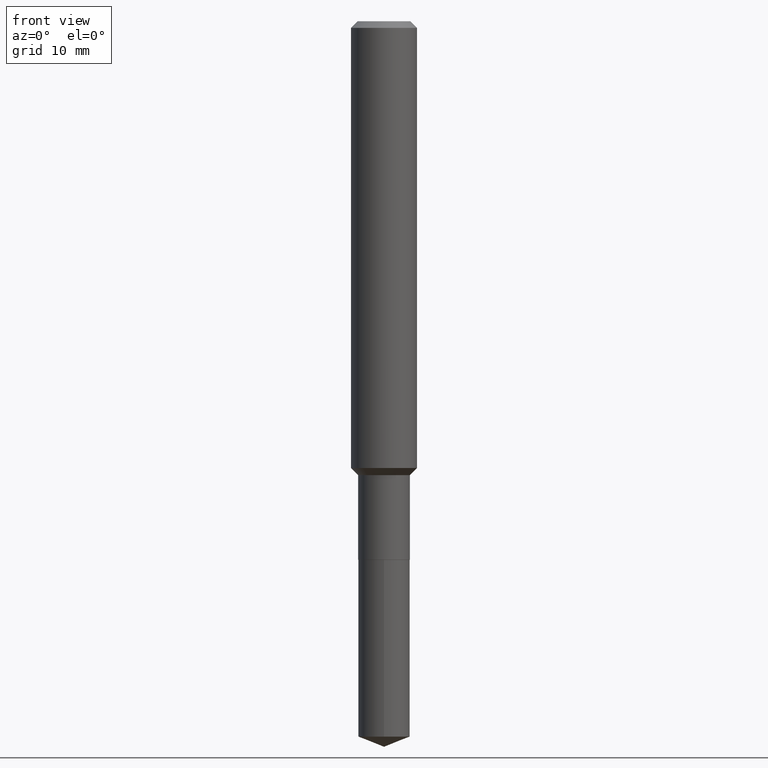
[diagram: clean part render]
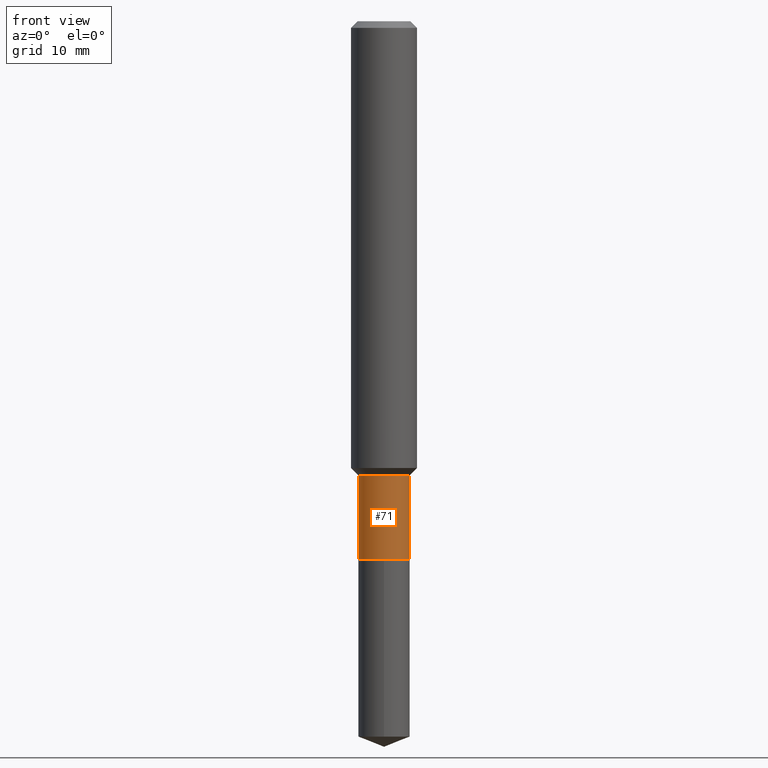
[diagram: same view with one face highlighted and labeled with its STEP entity id]
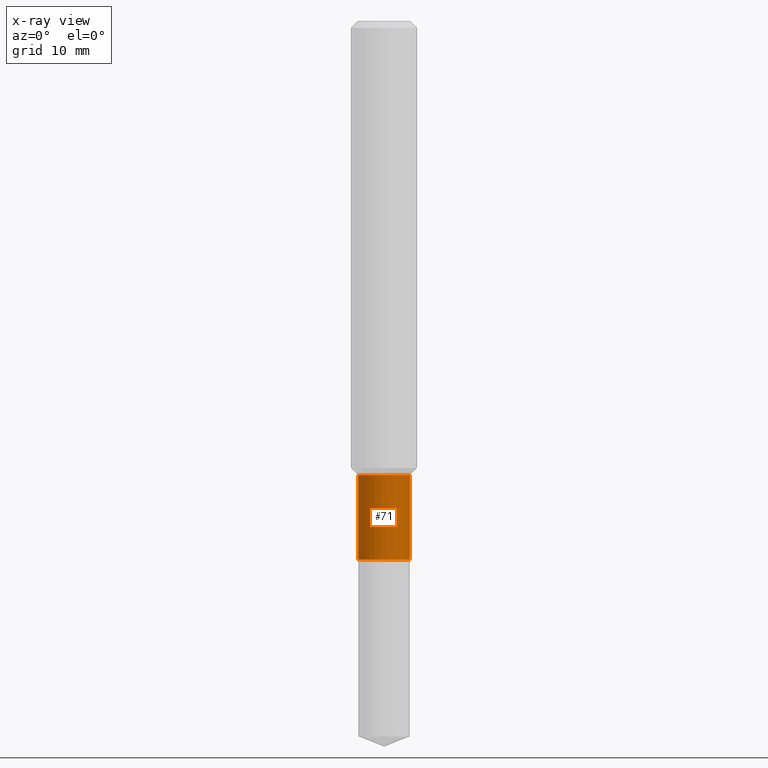
[diagram: x-ray of the same camera — body ghosted, the highlighted face saturated]
A machine part, front view. The second image highlights one B-rep face of the part: STEP entity #71.
The next image is the same camera in x-ray: the body ghosted, the highlighted face saturated — about 0% of this face is hidden behind the body in this view.
In plain terms, the highlighted cylindrical surface (edge-blend (fillet) strip) has radius 2.3495 mm, axis along (-0, 0, 1).
Its self-contained STEP definition (entity closure, byte-faithful):
#1 = VERTEX_POINT ( 'NONE', #129 ) ;
#18 = CARTESIAN_POINT ( 'NONE',  ( 4.716331139608654438E-29, -6.733670910092890989E-15, -1.928600000000000092 ) ) ;
#19 = VECTOR ( 'NONE', #30, 39.37007874015748143 ) ;
#28 = FACE_OUTER_BOUND ( 'NONE', #95, .T. ) ;
#30 = DIRECTION ( 'NONE',  ( -2.445468806185136877E-29, 3.491481338843145188E-15, 1.000000000000000000 ) ) ;
#31 = CARTESIAN_POINT ( 'NONE',  ( -0.09249999999999997113, -5.547634030747003003E-15, -1.625699999999999923 ) ) ;
#68 = CIRCLE ( 'NONE', #210, 0.09249999999999999889 ) ;
#71 = ADVANCED_FACE ( 'NONE', ( #28 ), #248, .T. ) ;
#72 = ORIENTED_EDGE ( 'NONE', *, *, #366, .F. ) ;
#86 = LINE ( 'NONE', #365, #131 ) ;
#89 = DIRECTION ( 'NONE',  ( -2.445468806185136877E-29, 3.491481338843145188E-15, 1.000000000000000000 ) ) ;
#94 = CARTESIAN_POINT ( 'NONE',  ( 0.09249999999999998501, -6.459240476859795918E-16, 4.510463517611239347E-30 ) ) ;
#95 = EDGE_LOOP ( 'NONE', ( #72, #359, #196, #153 ) ) ;
#102 = EDGE_CURVE ( 'NONE', #193, #397, #273, .T. ) ;
#129 = CARTESIAN_POINT ( 'NONE',  ( 0.09249999999999999889, -7.379594957778870187E-15, -1.928600000000000092 ) ) ;
#131 = VECTOR ( 'NONE', #89, 39.37007874015748143 ) ;
#153 = ORIENTED_EDGE ( 'NONE', *, *, #102, .F. ) ;
#173 = EDGE_CURVE ( 'NONE', #1, #397, #207, .T. ) ;
#193 = VERTEX_POINT ( 'NONE', #31 ) ;
#196 = ORIENTED_EDGE ( 'NONE', *, *, #173, .T. ) ;
#207 = LINE ( 'NONE', #94, #19 ) ;
#210 = AXIS2_PLACEMENT_3D ( 'NONE', #18, #279, #466 ) ;
#211 = CARTESIAN_POINT ( 'NONE',  ( -0.09249999999999999889, -5.547634030747003003E-15, -1.928600000000000092 ) ) ;
#228 = CARTESIAN_POINT ( 'NONE',  ( 0.09249999999999997113, -6.322025260243280726E-15, -1.625699999999999923 ) ) ;
#248 = CYLINDRICAL_SURFACE ( 'NONE', #364, 0.09249999999999998501 ) ;
#273 = CIRCLE ( 'NONE', #413, 0.09249999999999997113 ) ;
#279 = DIRECTION ( 'NONE',  ( -2.445468806185136597E-29, 3.491481338843145583E-15, 1.000000000000000000 ) ) ;
#281 = DIRECTION ( 'NONE',  ( 1.000000000000000000, -6.982962677686266711E-15, 4.876176775795935232E-29 ) ) ;
#289 = DIRECTION ( 'NONE',  ( -2.445468806185136597E-29, 3.491481338843145583E-15, 1.000000000000000000 ) ) ;
#320 = CARTESIAN_POINT ( 'NONE',  ( 0.000000000000000000, 0.000000000000000000, 0.000000000000000000 ) ) ;
#359 = ORIENTED_EDGE ( 'NONE', *, *, #475, .T. ) ;
#364 = AXIS2_PLACEMENT_3D ( 'NONE', #320, #389, #281 ) ;
#365 = CARTESIAN_POINT ( 'NONE',  ( -0.09249999999999998501, 6.572520305780925654E-16, -4.550014958485786769E-30 ) ) ;
#366 = EDGE_CURVE ( 'NONE', #458, #193, #86, .T. ) ;
#389 = DIRECTION ( 'NONE',  ( -2.445468806185136597E-29, 3.491481338843145583E-15, 1.000000000000000000 ) ) ;
#397 = VERTEX_POINT ( 'NONE', #228 ) ;
#413 = AXIS2_PLACEMENT_3D ( 'NONE', #476, #289, #434 ) ;
#434 = DIRECTION ( 'NONE',  ( 1.000000000000000000, -6.982962677686266711E-15, 0.000000000000000000 ) ) ;
#458 = VERTEX_POINT ( 'NONE', #211 ) ;
#466 = DIRECTION ( 'NONE',  ( 1.000000000000000000, -6.982962677686265133E-15, 0.000000000000000000 ) ) ;
#475 = EDGE_CURVE ( 'NONE', #458, #1, #68, .T. ) ;
#476 = CARTESIAN_POINT ( 'NONE',  ( 3.975598638215176219E-29, -5.676101212557301529E-15, -1.625699999999999923 ) ) ;